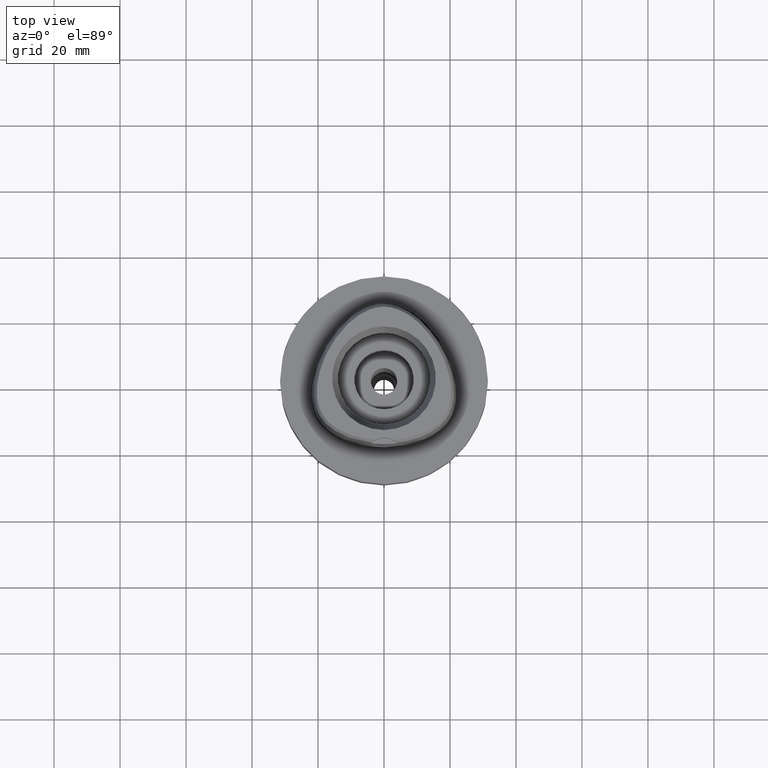
[diagram: clean part render]
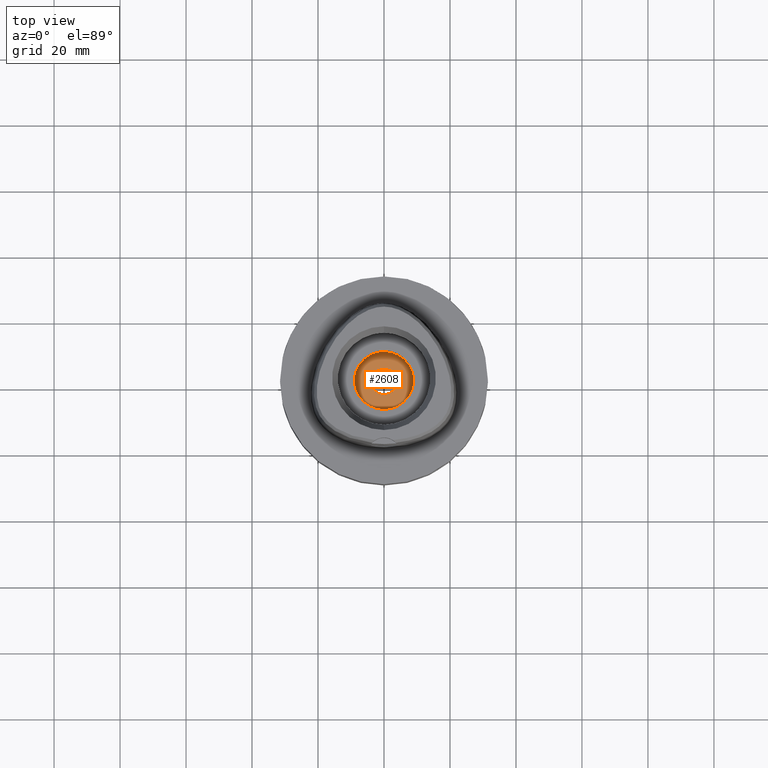
[diagram: same view with one face highlighted and labeled with its STEP entity id]
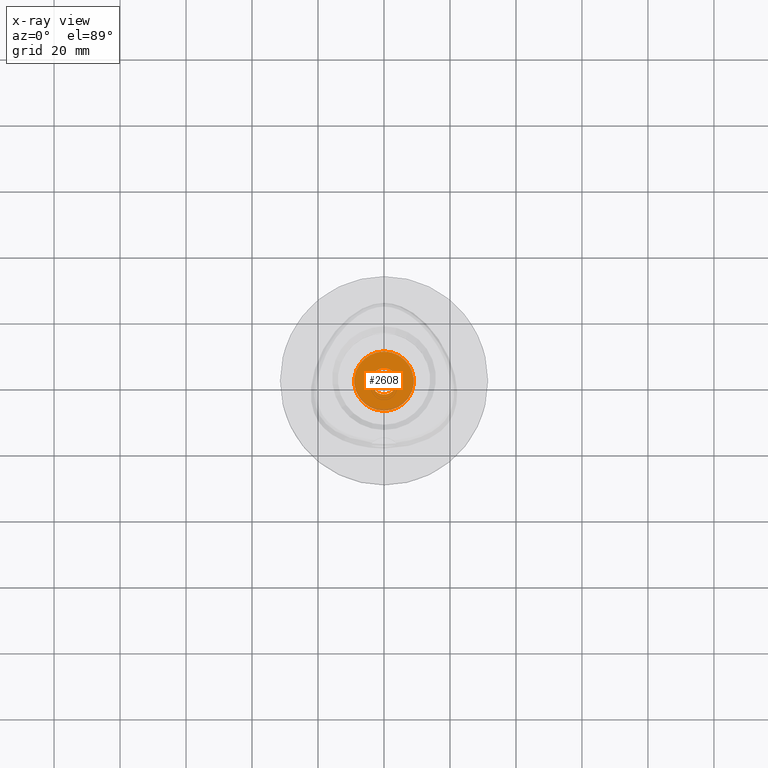
[diagram: x-ray of the same camera — body ghosted, the highlighted face saturated]
A machine part, top view. The second image highlights one B-rep face of the part: STEP entity #2608.
The next image is the same camera in x-ray: the body ghosted, the highlighted face saturated — about 4% of this face is hidden behind the body in this view.
In plain terms, the highlighted planar face has unit normal (0, 0, -1).
Its self-contained STEP definition (entity closure, byte-faithful):
#699=CARTESIAN_POINT('',(0.E0,0.E0,-1.6E1));
#700=DIRECTION('',(0.E0,0.E0,-1.E0));
#701=DIRECTION('',(0.E0,-1.E0,0.E0));
#702=AXIS2_PLACEMENT_3D('',#699,#700,#701);
#707=CARTESIAN_POINT('',(0.E0,0.E0,-1.6E1));
#708=DIRECTION('',(0.E0,0.E0,-1.E0));
#709=DIRECTION('',(0.E0,1.E0,0.E0));
#710=AXIS2_PLACEMENT_3D('',#707,#708,#709);
#715=CARTESIAN_POINT('',(0.E0,1.325680160077E-14,-1.6E1));
#716=DIRECTION('',(0.E0,0.E0,1.E0));
#717=DIRECTION('',(0.E0,-1.E0,0.E0));
#718=AXIS2_PLACEMENT_3D('',#715,#716,#717);
#723=CARTESIAN_POINT('',(0.E0,1.325680160077E-14,-1.6E1));
#724=DIRECTION('',(0.E0,0.E0,1.E0));
#725=DIRECTION('',(0.E0,1.E0,0.E0));
#726=AXIS2_PLACEMENT_3D('',#723,#724,#725);
#1550=CARTESIAN_POINT('',(0.E0,4.E0,-1.6E1));
#1551=VERTEX_POINT('',#1550);
#1552=CARTESIAN_POINT('',(0.E0,-4.E0,-1.6E1));
#1553=VERTEX_POINT('',#1552);
#1554=CARTESIAN_POINT('',(0.E0,-9.E0,-1.6E1));
#1555=CARTESIAN_POINT('',(0.E0,9.E0,-1.6E1));
#1556=VERTEX_POINT('',#1554);
#1557=VERTEX_POINT('',#1555);
#2593=CARTESIAN_POINT('',(0.E0,1.028703311284E-14,-1.6E1));
#2594=DIRECTION('',(0.E0,0.E0,-1.E0));
#2595=DIRECTION('',(0.E0,-1.E0,0.E0));
#2596=AXIS2_PLACEMENT_3D('',#2593,#2594,#2595);
#2597=PLANE('',#2596);
#2599=ORIENTED_EDGE('',*,*,#2598,.T.);
#2601=ORIENTED_EDGE('',*,*,#2600,.T.);
#2602=EDGE_LOOP('',(#2599,#2601));
#2603=FACE_OUTER_BOUND('',#2602,.F.);
#2604=ORIENTED_EDGE('',*,*,#2586,.T.);
#2605=ORIENTED_EDGE('',*,*,#2575,.T.);
#2606=EDGE_LOOP('',(#2604,#2605));
#2607=FACE_BOUND('',#2606,.F.);
#703=CIRCLE('',#702,9.E0);
#711=CIRCLE('',#710,9.E0);
#719=CIRCLE('',#718,4.E0);
#727=CIRCLE('',#726,4.E0);
#2575=EDGE_CURVE('',#1551,#1553,#727,.T.);
#2586=EDGE_CURVE('',#1553,#1551,#719,.T.);
#2598=EDGE_CURVE('',#1556,#1557,#703,.T.);
#2600=EDGE_CURVE('',#1557,#1556,#711,.T.);
#2608=ADVANCED_FACE('',(#2603,#2607),#2597,.F.);